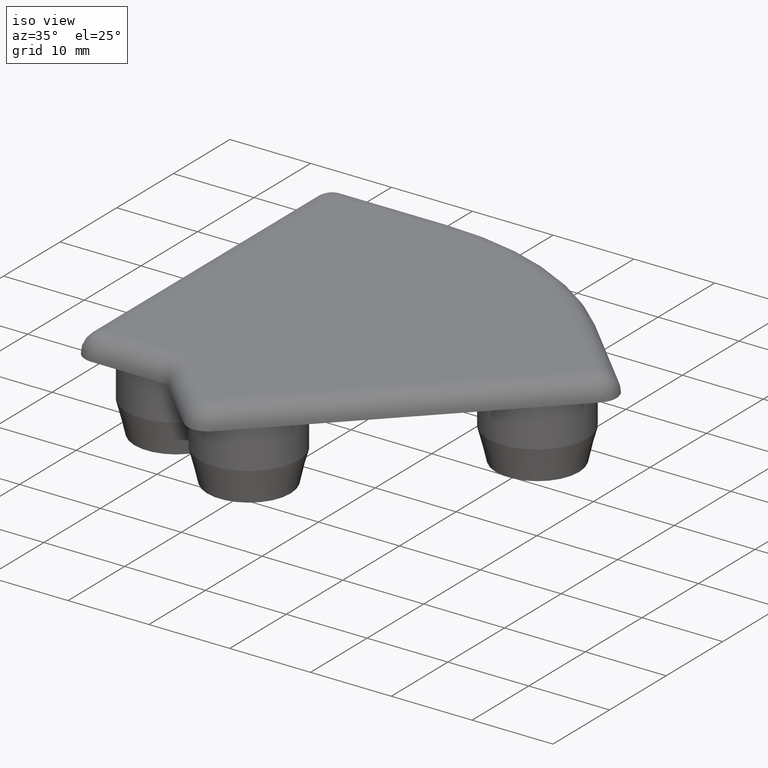
[diagram: clean part render]
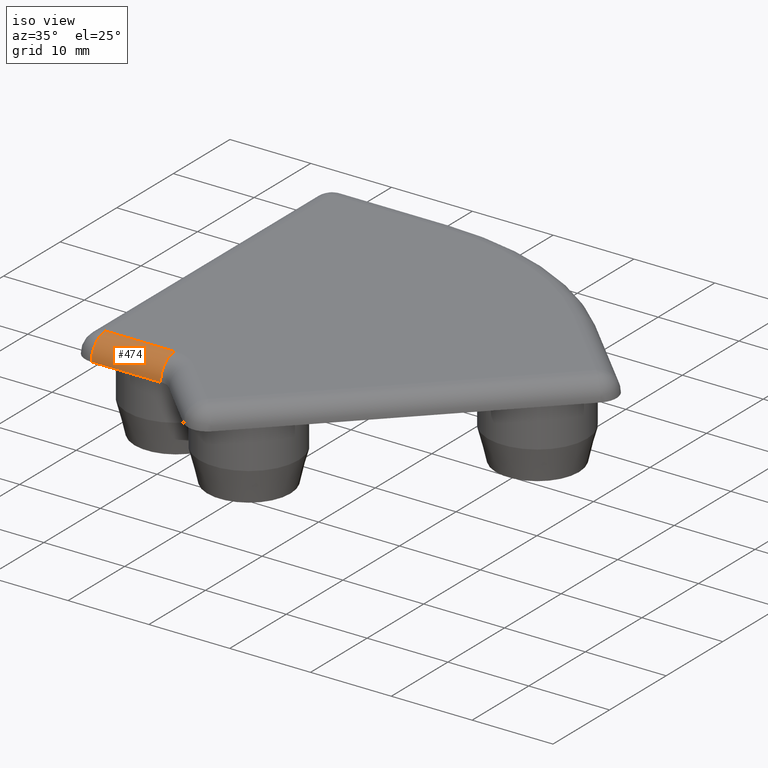
[diagram: same view with one face highlighted and labeled with its STEP entity id]
A machine part, iso view. The second image highlights one B-rep face of the part: STEP entity #474.
In plain terms, the highlighted cylindrical surface (edge-blend (fillet) strip) has radius 2.5 mm, axis along (-1, -0, 0).
Its self-contained STEP definition (entity closure, byte-faithful):
#48=CYLINDRICAL_SURFACE('',#556,2.5);
#74=FACE_OUTER_BOUND('',#116,.T.);
#116=EDGE_LOOP('',(#400,#401,#402,#403));
#143=LINE('',#835,#167);
#148=LINE('',#862,#172);
#167=VECTOR('',#675,10.);
#172=VECTOR('',#704,10.);
#205=CIRCLE('',#557,2.5);
#206=CIRCLE('',#558,2.5);
#241=VERTEX_POINT('',#832);
#242=VERTEX_POINT('',#834);
#251=VERTEX_POINT('',#859);
#252=VERTEX_POINT('',#861);
#293=EDGE_CURVE('',#242,#241,#143,.T.);
#304=EDGE_CURVE('',#241,#251,#205,.T.);
#305=EDGE_CURVE('',#251,#252,#148,.T.);
#306=EDGE_CURVE('',#252,#242,#206,.T.);
#400=ORIENTED_EDGE('',*,*,#304,.T.);
#401=ORIENTED_EDGE('',*,*,#305,.T.);
#402=ORIENTED_EDGE('',*,*,#306,.T.);
#403=ORIENTED_EDGE('',*,*,#293,.T.);
#474=ADVANCED_FACE('',(#74),#48,.T.);
#556=AXIS2_PLACEMENT_3D('',#858,#700,#701);
#557=AXIS2_PLACEMENT_3D('',#860,#702,#703);
#558=AXIS2_PLACEMENT_3D('',#863,#705,#706);
#675=DIRECTION('',(1.,1.82235322564765E-12,0.));
#700=DIRECTION('center_axis',(-1.,-1.82235322564765E-12,0.));
#701=DIRECTION('ref_axis',(1.28857488084177E-12,-0.707106781186548,0.707106781186547));
#702=DIRECTION('center_axis',(-1.,-1.82254211722466E-12,0.));
#703=DIRECTION('ref_axis',(1.82254211722466E-12,-1.,0.));
#704=DIRECTION('',(-1.,-1.82235322564765E-12,0.));
#705=DIRECTION('center_axis',(1.,1.82254211722466E-12,0.));
#706=DIRECTION('ref_axis',(0.,0.,1.));
#832=CARTESIAN_POINT('',(-9.27668124803532,-20.3958896825095,0.));
#834=CARTESIAN_POINT('',(-17.8545683265224,-20.3958896825251,0.));
#835=CARTESIAN_POINT('',(-17.8545683265224,-20.3958896825251,0.));
#858=CARTESIAN_POINT('Origin',(0.657224516953312,-17.8958896824914,0.));
#859=CARTESIAN_POINT('',(-9.27668124803987,-17.8958896825095,2.5));
#860=CARTESIAN_POINT('Origin',(-9.27668124803987,-17.8958896825095,0.));
#861=CARTESIAN_POINT('',(-17.854568326527,-17.8958896825251,2.5));
#862=CARTESIAN_POINT('',(0.657224516953312,-17.8958896824914,2.5));
#863=CARTESIAN_POINT('Origin',(-17.854568326527,-17.8958896825251,0.));